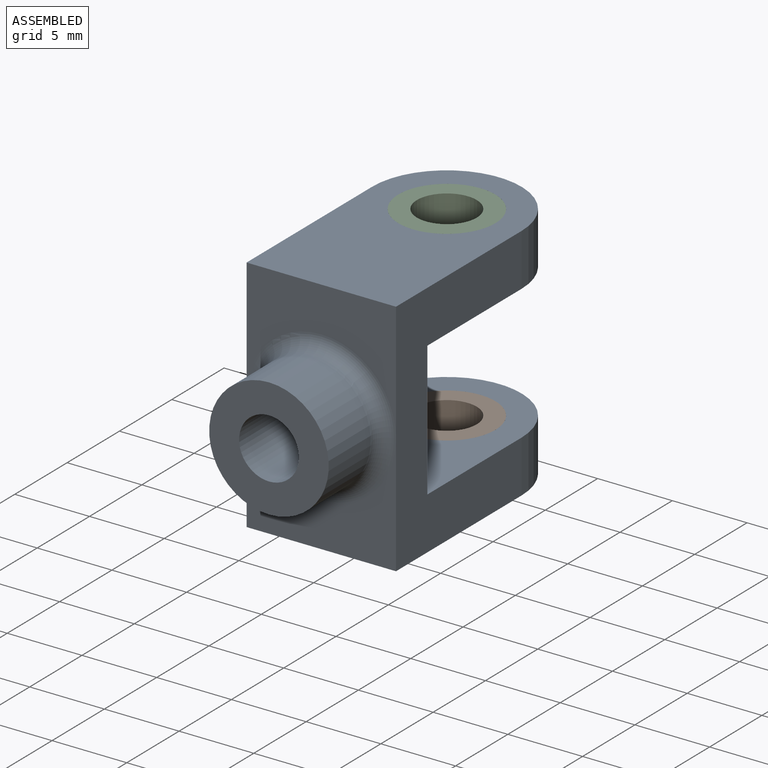
[diagram: assembled view]
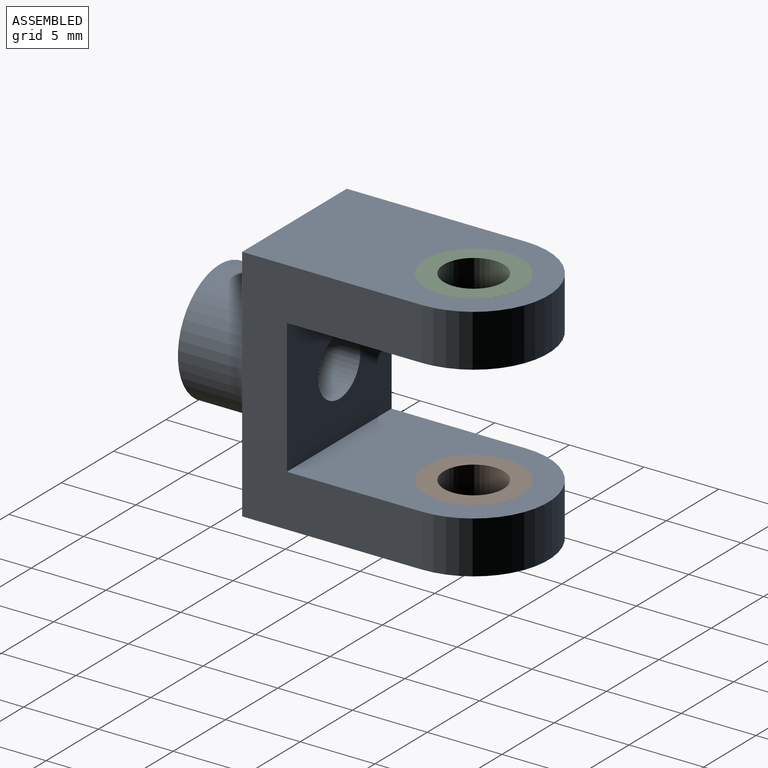
[diagram: assembled view, second angle]
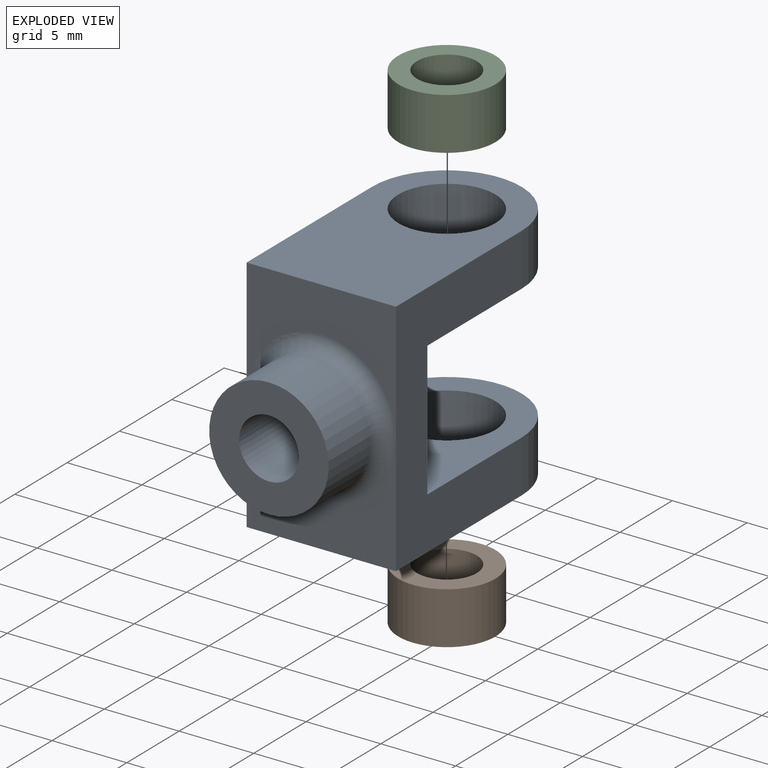
[diagram: exploded view]
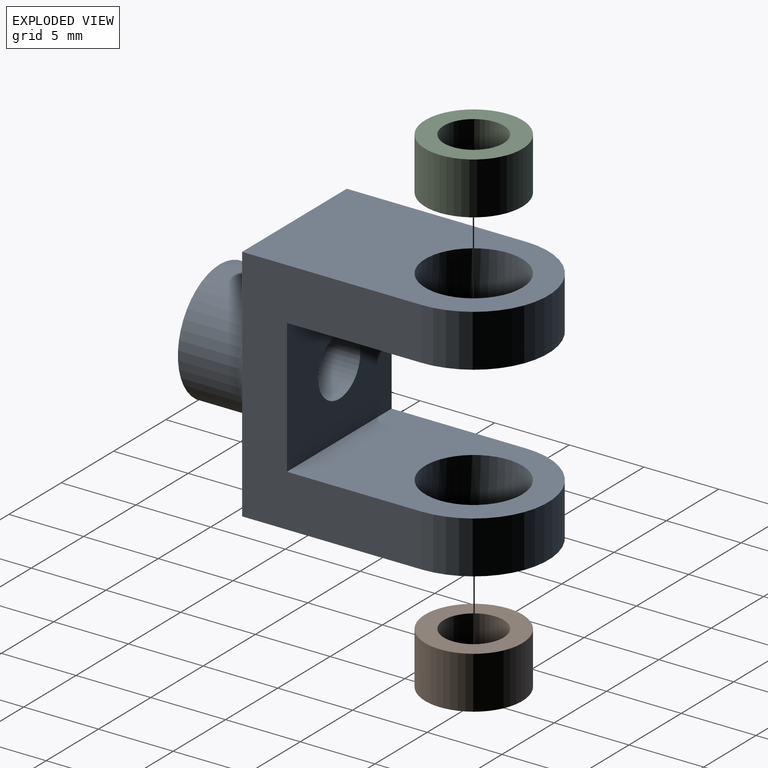
[diagram: exploded view, second angle]
ASSEMBLY  parts=3 mates=2
PART A: 17 faces, bbox 10.8x22x16 mm
  f0: plane 10x8mm, normal (0,-1,0), area 40.7mm2, adj f3,f4,f6,f15
  f1: cylinder r=5mm len=10mm, axis (0,0,-1), area 55mm2, adj f3,f4,f6,f8
  f2: cylinder r=5mm len=10mm, axis (0,0,-1), area 55mm2, adj f3,f4,f7,f10
  f3: plane 16x12mm, normal (1,0,0), area 111mm2, adj f0,f1,f2,f5,f6,f7,f8,f9
  f4: plane 16x12mm, normal (-1,0,0), area 111mm2, adj f0,f1,f2,f5,f6,f7,f8,f9
  f5: plane 10x8mm, normal (0,-1,0), area 40.7mm2, adj f3,f4,f10,f15
  f6: plane 17x10mm, normal (0,0,1), area 126.1mm2, adj f0,f1,f3,f4,f11
  f7: plane 14x10mm, normal (0,0,1), area 96.1mm2, adj f2,f3,f4,f9,f12
  f8: plane 14x10mm, normal (0,0,-1), area 96.1mm2, adj f1,f3,f4,f9,f11
  f9: plane 10x9mm, normal (0,1,0), area 77.4mm2, adj f3,f4,f7,f8,f16
  f10: plane 17x10mm, normal (0,0,-1), area 126.1mm2, adj f2,f3,f4,f5,f12
  f11: cylinder r=3.25mm len=6.5mm, axis (0,0,-1), area 71.5mm2, adj f6,f8
  f12: cylinder r=3.25mm len=6.5mm, axis (0,0,-1), area 71.5mm2, adj f7,f10
  f13: cylinder r=4mm len=8mm, axis (0,1,0), area 100.5mm2, adj f14,f15
  f14: plane 8x8mm, normal (0,-1,0), area 37.7mm2, adj f13,f16
  f15: torus R=5mm, axis (0,1,0), area 43.1mm2, adj f0,f5,f13
  f16: cylinder r=2mm len=8mm, axis (0,-1,0), area 100.5mm2, adj f9,f14
PART B: 4 faces, bbox 3.5x6.5x6.5 mm
  f0: cylinder r=2mm len=4mm, axis (-1,0,0), area 44mm2, adj f2,f3
  f1: cylinder r=3.25mm len=6.5mm, axis (-1,0,0), area 71.5mm2, adj f2,f3
  f2: plane 6.5x6.5mm, normal (1,0,0), area 20.6mm2, adj f0,f1
  f3: plane 6.5x6.5mm, normal (-1,0,0), area 20.6mm2, adj f0,f1
PART C: same geometry as B
PLACE A t=(-5.55,-7.77,2.15)mm
PLACE B rot(axis=(0,1,0),90deg) t=(-63.54,-53.18,-2.35)mm
PLACE C rot(axis=(0,-1,0),90deg) t=(52.45,-53.18,6.65)mm
MATE fastened C.f0 <-> A.f1  axis (0,0,-1) through (-5.55,4.23,10.15)mm
MATE fastened B.f0 <-> A.f1  axis (0,0,-1) through (-5.55,4.23,-5.85)mm
